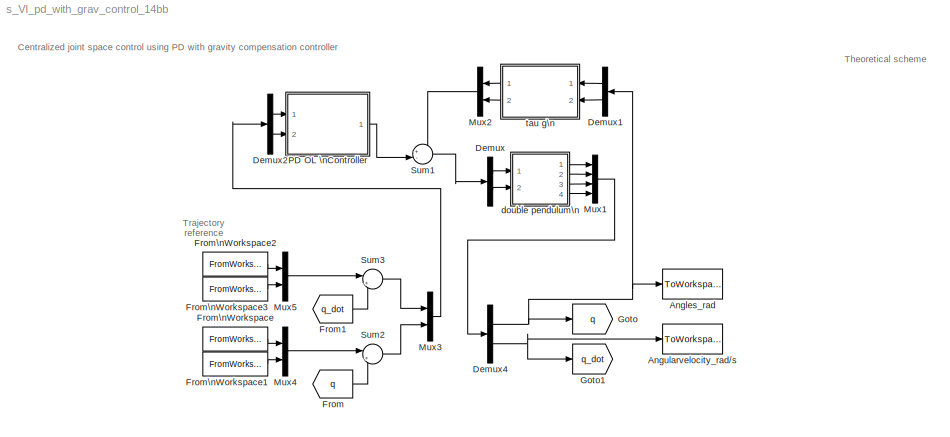
MODEL s_VI_pd_with_grav_control_14bb
KIND model
BLOCK [ToWorkspace] Angles_rad
  FixptAsFi = on
  MaxDataPoints = inf
  Ports = [1]
  SID = 70
  SampleTime = -1
  Save2DSignal = 3-D array (concatenate along third dimension)
  SaveFormat = Timeseries
  VariableName = q
BLOCK [ToWorkspace] Angularvelocity_rad//s
  FixptAsFi = on
  MaxDataPoints = inf
  Ports = [1]
  SID = 71
  SampleTime = -1
  Save2DSignal = 3-D array (concatenate along third dimension)
  SaveFormat = Timeseries
  VariableName = q_dot
BLOCK [Demux] Demux
  DisplayOption = bar
  Outputs = 2
  Ports = [1, 2]
  SID = 1
BLOCK [Demux] Demux1
  DisplayOption = bar
  Outputs = 2
  Ports = [1, 2]
  SID = 109
BLOCK [Demux] Demux2
  DisplayOption = bar
  Outputs = 2
  Ports = [1, 2]
  SID = 111
BLOCK [Demux] Demux4
  DisplayOption = bar
  Outputs = 2
  Ports = [1, 2]
  SID = 47
BLOCK [From] From
  GotoTag = q
  SID = 43
BLOCK [From] From1
  GotoTag = q_dot
  SID = 49
BLOCK [FromWorkspace] From\nWorkspace
  SID = 55
  SampleTime = 0
  VariableName = q1d
  ZeroCross = on
BLOCK [FromWorkspace] From\nWorkspace1
  SID = 57
  SampleTime = 0
  VariableName = q2d
  ZeroCross = on
BLOCK [FromWorkspace] From\nWorkspace2
  SID = 59
  SampleTime = 0
  VariableName = q1d_dot
  ZeroCross = on
BLOCK [FromWorkspace] From\nWorkspace3
  SID = 60
  SampleTime = 0
  VariableName = q2d_dot
  ZeroCross = on
BLOCK [Goto] Goto
  GotoTag = q
  SID = 44
BLOCK [Goto] Goto1
  GotoTag = q_dot
  SID = 48
BLOCK [Mux] Mux1
  DisplayOption = bar
  Ports = [4, 1]
  SID = 3
BLOCK [Mux] Mux2
  DisplayOption = bar
  Inputs = 2
  Ports = [2, 1]
  SID = 110
BLOCK [Mux] Mux3
  DisplayOption = bar
  Inputs = 2
  Ports = [2, 1]
  SID = 112
BLOCK [Mux] Mux4
  DisplayOption = bar
  Inputs = 2
  Ports = [2, 1]
  SID = 58
BLOCK [Mux] Mux5
  DisplayOption = bar
  Inputs = 2
  Ports = [2, 1]
  SID = 61
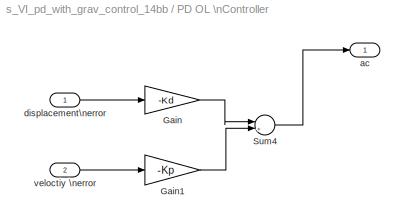
BLOCK [SubSystem] PD OL \nController
  Ports = [2, 1]
  RequestExecContextInheritance = off
  SID = 95
BLOCK [Gain] PD OL \nController/Gain
  Gain = -Kd
  Multiplication = Matrix(K*u)
  OutDataTypeStr = Inherit: Inherit via internal rule
  ParamDataTypeStr = Inherit: Inherit via internal rule
  SID = 41
  SaturateOnIntegerOverflow = off
BLOCK [Gain] PD OL \nController/Gain1
  Gain = -Kp
  Multiplication = Matrix(K*u)
  OutDataTypeStr = Inherit: Inherit via internal rule
  ParamDataTypeStr = Inherit: Inherit via internal rule
  SID = 50
  SaturateOnIntegerOverflow = off
BLOCK [Sum] PD OL \nController/Sum4
  IconShape = round
  InputSameDT = off
  Inputs = |++
  OutDataTypeStr = Inherit: Inherit via internal rule
  Ports = [2, 1]
  SID = 53
  SaturateOnIntegerOverflow = off
BLOCK [Outport] PD OL \nController/ac
  IconDisplay = Port number
  SID = 98
BLOCK [Inport] PD OL \nController/displacement\nerror
  IconDisplay = Port number
  SID = 96
BLOCK [Inport] PD OL \nController/veloctiy \nerror
  IconDisplay = Port number
  Port = 2
  SID = 97
BLOCK [Sum] Sum1
  IconShape = round
  InputSameDT = off
  Inputs = +-|
  OutDataTypeStr = Inherit: Inherit via internal rule
  Ports = [2, 1]
  SID = 113
  SaturateOnIntegerOverflow = off
BLOCK [Sum] Sum2
  IconShape = round
  InputSameDT = off
  Inputs = |+-
  OutDataTypeStr = Inherit: Inherit via internal rule
  Ports = [2, 1]
  SID = 45
  SaturateOnIntegerOverflow = off
BLOCK [Sum] Sum3
  IconShape = round
  InputSameDT = off
  Inputs = |+-
  OutDataTypeStr = Inherit: Inherit via internal rule
  Ports = [2, 1]
  SID = 46
  SaturateOnIntegerOverflow = off
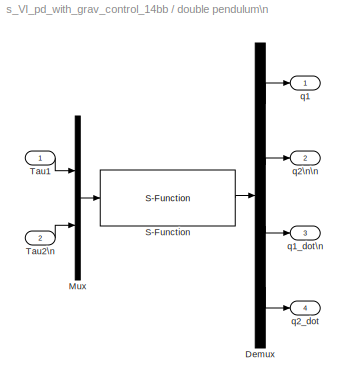
BLOCK [SubSystem] double pendulum\n
  Ports = [2, 4]
  RequestExecContextInheritance = off
  SID = 7
BLOCK [Demux] double pendulum\n/Demux
  DisplayOption = bar
  Ports = [1, 4]
  SID = 10
BLOCK [Mux] double pendulum\n/Mux
  DisplayOption = bar
  Inputs = 2
  Ports = [2, 1]
  SID = 11
BLOCK [S-Function] double pendulum\n/S-Function
  EnableBusSupport = off
  FunctionName = m_I_doublependulum
  Parameters = 0 0 0 0
  Ports = [1, 1]
  SFunctionDeploymentMode = off
  SID = 12
BLOCK [Inport] double pendulum\n/Tau1
  IconDisplay = Port number
  SID = 8
BLOCK [Inport] double pendulum\n/Tau2\n
  IconDisplay = Port number
  Port = 2
  SID = 9
BLOCK [Outport] double pendulum\n/q1
  IconDisplay = Port number
  SID = 13
BLOCK [Outport] double pendulum\n/q1_dot\n
  IconDisplay = Port number
  Port = 3
  SID = 15
BLOCK [Outport] double pendulum\n/q2\n\n
  IconDisplay = Port number
  Port = 2
  SID = 14
BLOCK [Outport] double pendulum\n/q2_dot
  IconDisplay = Port number
  Port = 4
  SID = 16
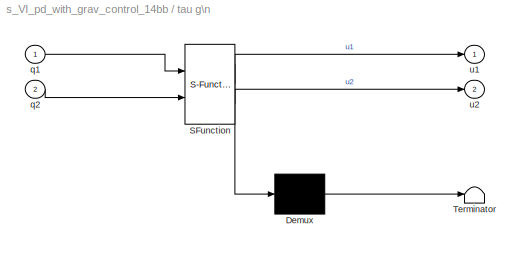
BLOCK [SubSystem] tau g\n
  ErrorFcn = Stateflow.Translate.translate
  PermitHierarchicalResolution = ParametersOnly
  Ports = [2, 2]
  RequestExecContextInheritance = off
  SFBlockType = MATLAB Function
  SID = 108
  TreatAsAtomicUnit = on
BLOCK [Demux] tau g\n/ Demux 
  Outputs = 1
  Ports = [1, 1]
  SID = 108::27
BLOCK [S-Function] tau g\n/ SFunction 
  EnableBusSupport = on
  FunctionName = sf_sfun
  PortCounts = [2 3]
  Ports = [2, 3]
  SFunctionDeploymentMode = off
  SID = 108::26
  Tag = Stateflow S-Function s_VI_pd_with_grav_control_14bb 1
BLOCK [Terminator] tau g\n/ Terminator 
  SID = 108::28
BLOCK [Inport] tau g\n/q1
  IconDisplay = Port number
  SID = 108::1
BLOCK [Inport] tau g\n/q2
  IconDisplay = Port number
  Port = 2
  SID = 108::22
BLOCK [Outport] tau g\n/u1
  IconDisplay = Port number
  SID = 108::5
BLOCK [Outport] tau g\n/u2
  IconDisplay = Port number
  Port = 2
  SID = 108::25
ANNOTATION (root): \n \n Trajectory \n reference
ANNOTATION (root): \n \n Centralized joint space control using PD with gravity compensation controller
ANNOTATION (root): \n \n Theoretical scheme
LINE Demux1:1 -> tau g\n:1
LINE Demux1:2 -> tau g\n:2
LINE Demux2:1 -> PD OL \nController:1
LINE Demux2:2 -> PD OL \nController:2
NET Demux4:1 -> Angles_rad:1, Demux1:1, Goto:1
NET Demux4:2 -> Angularvelocity_rad//s:1, Goto1:1
LINE Demux:1 -> double pendulum\n:1
LINE Demux:2 -> double pendulum\n:2
LINE From1:1 -> Sum3:2
LINE From:1 -> Sum2:2
LINE From\nWorkspace1:1 -> Mux4:2
LINE From\nWorkspace2:1 -> Mux5:1
LINE From\nWorkspace3:1 -> Mux5:2
LINE From\nWorkspace:1 -> Mux4:1
LINE Mux1:1 -> Demux4:1
LINE Mux2:1 -> Sum1:1
LINE Mux3:1 -> Demux2:1
LINE Mux4:1 -> Sum2:1
LINE Mux5:1 -> Sum3:1
LINE PD OL \nController/Gain1:1 -> PD OL \nController/Sum4:2
LINE PD OL \nController/Gain:1 -> PD OL \nController/Sum4:1
LINE PD OL \nController/Sum4:1 -> PD OL \nController/ac:1
LINE PD OL \nController/displacement\nerror:1 -> PD OL \nController/Gain:1
LINE PD OL \nController/veloctiy \nerror:1 -> PD OL \nController/Gain1:1
LINE PD OL \nController:1 -> Sum1:2
LINE Sum1:1 -> Demux:1
LINE Sum2:1 -> Mux3:2
LINE Sum3:1 -> Mux3:1
LINE double pendulum\n/Demux:1 -> double pendulum\n/q1:1
LINE double pendulum\n/Demux:2 -> double pendulum\n/q2\n\n:1
LINE double pendulum\n/Demux:3 -> double pendulum\n/q1_dot\n:1
LINE double pendulum\n/Demux:4 -> double pendulum\n/q2_dot:1
LINE double pendulum\n/Mux:1 -> double pendulum\n/S-Function:1
LINE double pendulum\n/S-Function:1 -> double pendulum\n/Demux:1
LINE double pendulum\n/Tau1:1 -> double pendulum\n/Mux:1
LINE double pendulum\n/Tau2\n:1 -> double pendulum\n/Mux:2
LINE double pendulum\n:1 -> Mux1:1
LINE double pendulum\n:2 -> Mux1:2
LINE double pendulum\n:3 -> Mux1:3
LINE double pendulum\n:4 -> Mux1:4
LINE tau g\n/ Demux :1 -> tau g\n/ Terminator :1
LINE tau g\n/ SFunction :1 -> tau g\n/ Demux :1
LINE tau g\n/ SFunction :2 -> tau g\n/u1:1
LINE tau g\n/ SFunction :3 -> tau g\n/u2:1
LINE tau g\n/q1:1 -> tau g\n/ SFunction :1
LINE tau g\n/q2:1 -> tau g\n/ SFunction :2
LINE tau g\n:1 -> Mux2:1
LINE tau g\n:2 -> Mux2:2
note: NET lines group one-source signal fan-out (src -> all destinations, sorted); 1:1 wires keep LINE
CHART tau g\n states=1 transitions=1
  STATE_LABEL 'eML_blk_kernel()'
